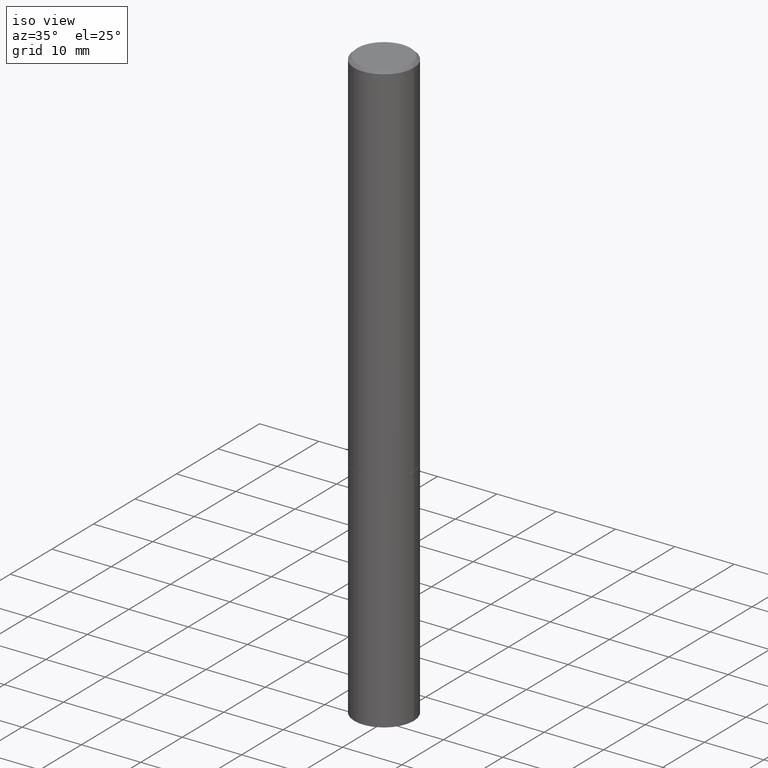
[diagram: clean part render]
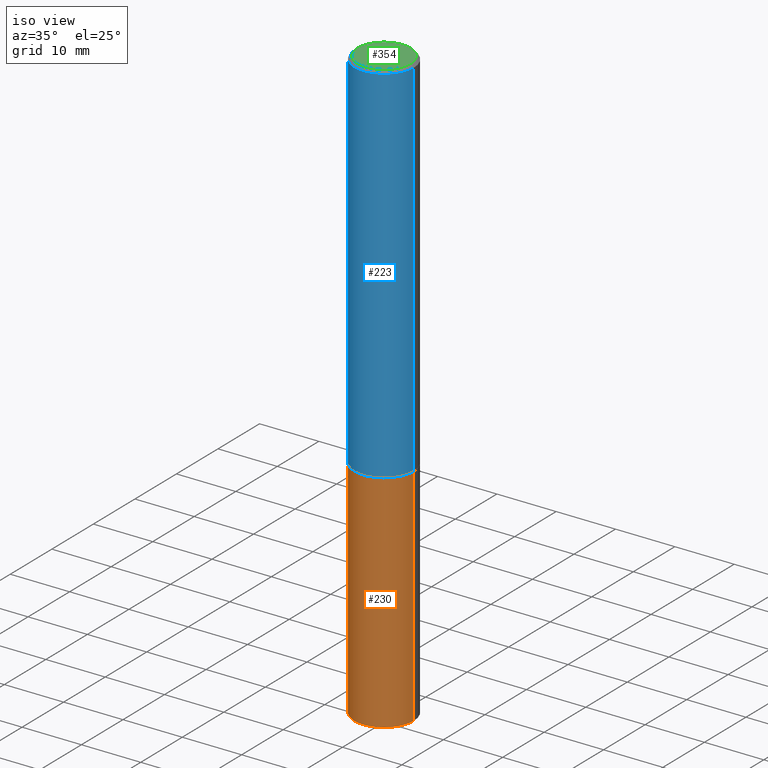
[diagram: same view with three faces highlighted in distinct colors, each labeled with its STEP entity id]
A machine part, iso view with three faces highlighted in distinct colors.
Their STEP definitions:

[orange] entity #230 — the highlighted cylindrical surface (edge-blend (fillet) strip) has radius 5 mm, axis along (-0, 0, 1).
#2 = AXIS2_PLACEMENT_3D ( 'NONE', #253, #111, #21 ) ;
#21 = DIRECTION ( 'NONE',  ( 1.000000000000000000, -6.982962677686262766E-15, 0.000000000000000000 ) ) ;
#23 = CARTESIAN_POINT ( 'NONE',  ( 0.000000000000000000, 0.000000000000000000, 0.000000000000000000 ) ) ;
#28 = CARTESIAN_POINT ( 'NONE',  ( 0.1968500000000000250, -9.896953003084774574E-15, -2.440900000000000070 ) ) ;
#29 = EDGE_CURVE ( 'NONE', #119, #319, #194, .T. ) ;
#34 = VERTEX_POINT ( 'NONE', #172 ) ;
#48 = CARTESIAN_POINT ( 'NONE',  ( 9.627810689950883669E-29, -1.374596203102546341E-14, -3.937000000000000277 ) ) ;
#53 = CYLINDRICAL_SURFACE ( 'NONE', #325, 0.1968500000000000250 ) ;
#58 = CARTESIAN_POINT ( 'NONE',  ( -0.1968500000000000250, 1.398703375343757393E-15, -9.682923725166783677E-30 ) ) ;
#77 = AXIS2_PLACEMENT_3D ( 'NONE', #48, #196, #167 ) ;
#82 = VECTOR ( 'NONE', #227, 39.37007874015748143 ) ;
#91 = ORIENTED_EDGE ( 'NONE', *, *, #332, .F. ) ;
#92 = LINE ( 'NONE', #58, #361 ) ;
#103 = ORIENTED_EDGE ( 'NONE', *, *, #29, .T. ) ;
#110 = EDGE_LOOP ( 'NONE', ( #91, #177, #103, #359 ) ) ;
#111 = DIRECTION ( 'NONE',  ( -2.445468806185136597E-29, 3.491481338843145583E-15, 1.000000000000000000 ) ) ;
#119 = VERTEX_POINT ( 'NONE', #146 ) ;
#122 = CARTESIAN_POINT ( 'NONE',  ( -0.1968500000000000250, -9.735456040160091980E-15, -2.440900000000000070 ) ) ;
#136 = VERTEX_POINT ( 'NONE', #122 ) ;
#139 = FACE_OUTER_BOUND ( 'NONE', #110, .T. ) ;
#141 = CARTESIAN_POINT ( 'NONE',  ( 0.1968500000000000250, -1.374596203102541608E-15, 9.598753983154300858E-30 ) ) ;
#146 = CARTESIAN_POINT ( 'NONE',  ( 0.1968500000000000250, -1.512055823412800660E-14, -3.937000000000000277 ) ) ;
#160 = EDGE_CURVE ( 'NONE', #34, #119, #251, .T. ) ;
#167 = DIRECTION ( 'NONE',  ( 1.000000000000000000, -6.982962677686267499E-15, 0.000000000000000000 ) ) ;
#172 = CARTESIAN_POINT ( 'NONE',  ( -0.1968500000000000250, -9.735456040160091980E-15, -3.937000000000000277 ) ) ;
#177 = ORIENTED_EDGE ( 'NONE', *, *, #160, .T. ) ;
#181 = EDGE_CURVE ( 'NONE', #136, #319, #245, .T. ) ;
#194 = LINE ( 'NONE', #141, #82 ) ;
#196 = DIRECTION ( 'NONE',  ( -2.445468806185136597E-29, 3.491481338843145583E-15, 1.000000000000000000 ) ) ;
#227 = DIRECTION ( 'NONE',  ( -2.445468806185136877E-29, 3.491481338843145188E-15, 1.000000000000000000 ) ) ;
#230 = ADVANCED_FACE ( 'NONE', ( #139 ), #53, .T. ) ;
#245 = CIRCLE ( 'NONE', #2, 0.1968500000000000250 ) ;
#251 = CIRCLE ( 'NONE', #77, 0.1968500000000000250 ) ;
#253 = CARTESIAN_POINT ( 'NONE',  ( 5.969144809017299038E-29, -8.522356799982232966E-15, -2.440900000000000070 ) ) ;
#262 = DIRECTION ( 'NONE',  ( -2.445468806185136877E-29, 3.491481338843145188E-15, 1.000000000000000000 ) ) ;
#278 = DIRECTION ( 'NONE',  ( -2.445468806185136597E-29, 3.491481338843145583E-15, 1.000000000000000000 ) ) ;
#319 = VERTEX_POINT ( 'NONE', #28 ) ;
#325 = AXIS2_PLACEMENT_3D ( 'NONE', #23, #278, #358 ) ;
#332 = EDGE_CURVE ( 'NONE', #34, #136, #92, .T. ) ;
#358 = DIRECTION ( 'NONE',  ( 1.000000000000000000, -6.982962677686265922E-15, 4.876176775795935793E-29 ) ) ;
#359 = ORIENTED_EDGE ( 'NONE', *, *, #181, .F. ) ;
#361 = VECTOR ( 'NONE', #262, 39.37007874015748143 ) ;

[blue] entity #223 — the highlighted cylindrical surface (edge-blend (fillet) strip) has radius 5 mm, axis along (-0, 0, 1).
#7 = CARTESIAN_POINT ( 'NONE',  ( -0.1968499999999996364, 1.304766576325675944E-15, -0.02000000000000002123 ) ) ;
#61 = EDGE_CURVE ( 'NONE', #249, #149, #279, .T. ) ;
#64 = DIRECTION ( 'NONE',  ( -2.445468806185136597E-29, 3.491481338843145583E-15, 1.000000000000000000 ) ) ;
#66 = EDGE_CURVE ( 'NONE', #345, #114, #331, .T. ) ;
#75 = CYLINDRICAL_SURFACE ( 'NONE', #150, 0.1968499999999998307 ) ;
#78 = CARTESIAN_POINT ( 'NONE',  ( -0.1968499999999998307, 1.398703375343756013E-15, -9.682923725166775270E-30 ) ) ;
#79 = CARTESIAN_POINT ( 'NONE',  ( 0.000000000000000000, 0.000000000000000000, 0.000000000000000000 ) ) ;
#86 = ORIENTED_EDGE ( 'NONE', *, *, #140, .T. ) ;
#87 = ORIENTED_EDGE ( 'NONE', *, *, #61, .T. ) ;
#89 = AXIS2_PLACEMENT_3D ( 'NONE', #142, #200, #115 ) ;
#114 = VERTEX_POINT ( 'NONE', #7 ) ;
#115 = DIRECTION ( 'NONE',  ( 1.000000000000000000, -6.982962677686266711E-15, 0.000000000000000000 ) ) ;
#140 = EDGE_CURVE ( 'NONE', #345, #249, #324, .T. ) ;
#142 = CARTESIAN_POINT ( 'NONE',  ( 4.890937612370278413E-31, -6.982962677686297772E-17, -0.02000000000000002123 ) ) ;
#148 = DIRECTION ( 'NONE',  ( 1.000000000000000000, -6.982962677686266711E-15, 0.000000000000000000 ) ) ;
#149 = VERTEX_POINT ( 'NONE', #179 ) ;
#150 = AXIS2_PLACEMENT_3D ( 'NONE', #79, #193, #362 ) ;
#158 = AXIS2_PLACEMENT_3D ( 'NONE', #315, #64, #148 ) ;
#179 = CARTESIAN_POINT ( 'NONE',  ( 0.1968499999999996364, -1.420318657638186558E-15, -0.02000000000000002123 ) ) ;
#183 = ORIENTED_EDGE ( 'NONE', *, *, #66, .F. ) ;
#189 = CARTESIAN_POINT ( 'NONE',  ( 0.1968500000000000527, -9.893461521745931567E-15, -2.439899999999999736 ) ) ;
#193 = DIRECTION ( 'NONE',  ( -2.445468806185136597E-29, 3.491481338843145583E-15, 1.000000000000000000 ) ) ;
#200 = DIRECTION ( 'NONE',  ( -2.445468806185136597E-29, 3.491481338843145583E-15, 1.000000000000000000 ) ) ;
#207 = DIRECTION ( 'NONE',  ( -2.445468806185136877E-29, 3.491481338843145188E-15, 1.000000000000000000 ) ) ;
#219 = DIRECTION ( 'NONE',  ( -2.445468806185136877E-29, 3.491481338843145188E-15, 1.000000000000000000 ) ) ;
#223 = ADVANCED_FACE ( 'NONE', ( #336 ), #75, .T. ) ;
#228 = VECTOR ( 'NONE', #219, 39.37007874015748143 ) ;
#229 = CIRCLE ( 'NONE', #89, 0.1968499999999996364 ) ;
#239 = EDGE_LOOP ( 'NONE', ( #183, #86, #87, #268 ) ) ;
#249 = VERTEX_POINT ( 'NONE', #189 ) ;
#268 = ORIENTED_EDGE ( 'NONE', *, *, #338, .F. ) ;
#279 = LINE ( 'NONE', #356, #228 ) ;
#313 = VECTOR ( 'NONE', #207, 39.37007874015748143 ) ;
#315 = CARTESIAN_POINT ( 'NONE',  ( 5.966699340211114556E-29, -8.518865318643389958E-15, -2.439899999999999736 ) ) ;
#324 = CIRCLE ( 'NONE', #158, 0.1968500000000000527 ) ;
#331 = LINE ( 'NONE', #78, #313 ) ;
#336 = FACE_OUTER_BOUND ( 'NONE', #239, .T. ) ;
#338 = EDGE_CURVE ( 'NONE', #114, #149, #229, .T. ) ;
#343 = CARTESIAN_POINT ( 'NONE',  ( -0.1968500000000000527, -2.895644097366364896E-15, -2.439899999999999736 ) ) ;
#345 = VERTEX_POINT ( 'NONE', #343 ) ;
#356 = CARTESIAN_POINT ( 'NONE',  ( 0.1968499999999998307, -1.374596203102540425E-15, 9.598753983154291049E-30 ) ) ;
#362 = DIRECTION ( 'NONE',  ( 1.000000000000000000, -6.982962677686266711E-15, 4.876176775795935793E-29 ) ) ;

[green] entity #354 — the highlighted planar face has unit normal (0, -0, -1).
#3 = DIRECTION ( 'NONE',  ( -1.000000000000000000, 6.982962677686265922E-15, -4.876176775795935793E-29 ) ) ;
#11 = EDGE_CURVE ( 'NONE', #56, #316, #69, .T. ) ;
#13 = ORIENTED_EDGE ( 'NONE', *, *, #11, .T. ) ;
#56 = VERTEX_POINT ( 'NONE', #339 ) ;
#60 = CARTESIAN_POINT ( 'NONE',  ( 0.1768499999999996464, -1.316798864272039577E-15, 4.268512490109333727E-18 ) ) ;
#69 = CIRCLE ( 'NONE', #274, 0.1768499999999996464 ) ;
#80 = DIRECTION ( 'NONE',  ( -2.445468806185136597E-29, 3.491481338843145583E-15, 1.000000000000000000 ) ) ;
#84 = DIRECTION ( 'NONE',  ( 1.000000000000000000, -6.982962677686266711E-15, 4.875932113059887537E-29 ) ) ;
#106 = CARTESIAN_POINT ( 'NONE',  ( -1.043851414335219820E-46, 1.490343170380447200E-32, 4.268512490100411279E-18 ) ) ;
#121 = DIRECTION ( 'NONE',  ( 2.438088387897960049E-29, -3.491481338843145188E-15, -1.000000000000000000 ) ) ;
#144 = FACE_OUTER_BOUND ( 'NONE', #180, .T. ) ;
#145 = CARTESIAN_POINT ( 'NONE',  ( -1.043851414335219820E-46, 1.490343170380447200E-32, 4.268512490100411279E-18 ) ) ;
#161 = DIRECTION ( 'NONE',  ( 1.000000000000000000, -6.982962677686266711E-15, 4.875932113059887537E-29 ) ) ;
#173 = DIRECTION ( 'NONE',  ( -2.445468806185136597E-29, 3.491481338843145583E-15, 1.000000000000000000 ) ) ;
#180 = EDGE_LOOP ( 'NONE', ( #13, #199 ) ) ;
#199 = ORIENTED_EDGE ( 'NONE', *, *, #304, .T. ) ;
#216 = CIRCLE ( 'NONE', #340, 0.1768499999999996464 ) ;
#257 = PLANE ( 'NONE',  #258 ) ;
#258 = AXIS2_PLACEMENT_3D ( 'NONE', #288, #121, #3 ) ;
#274 = AXIS2_PLACEMENT_3D ( 'NONE', #106, #80, #161 ) ;
#288 = CARTESIAN_POINT ( 'NONE',  ( 1.234936949548813631E-15, 0.1768499999999996464, -6.153342185293588703E-16 ) ) ;
#304 = EDGE_CURVE ( 'NONE', #316, #56, #216, .T. ) ;
#316 = VERTEX_POINT ( 'NONE', #60 ) ;
#339 = CARTESIAN_POINT ( 'NONE',  ( -0.1768499999999996464, 1.269851762937245083E-15, 4.268512490091652920E-18 ) ) ;
#340 = AXIS2_PLACEMENT_3D ( 'NONE', #145, #173, #84 ) ;
#354 = ADVANCED_FACE ( 'NONE', ( #144 ), #257, .F. ) ;